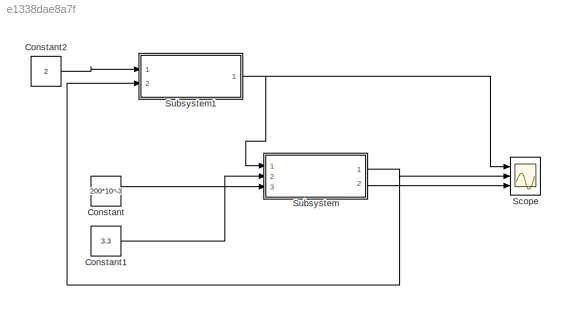
MODEL slx_e1338dae8a7f
KIND model
CONFIG AbsTol = auto
CONFIG FixedStep = auto
CONFIG MaxStep = auto
CONFIG MinStep = auto
CONFIG RelTol = 1e-3
CONFIG SampleTimeConstraint = Unconstrained
CONFIG Solver = ode15s
CONFIG SolverMode = SingleTasking
CONFIG SolverName = ode15s
CONFIG StartTime = 0.0
CONFIG StopTime = 0.01
BLOCK [Constant] Constant
  Value = 200*10^-3
BLOCK [Constant] Constant1
  Value = 3.3
BLOCK [Constant] Constant2
  Value = 2
BLOCK [Scope] Scope
  NumInputPorts = 3
  Ports = [3]
  ScopeSpecificationString = Simulink.scopes.TimeScopeBlockCfg('CurrentConfiguration', extmgr.ConfigurationSet(extmgr.Configuration('Core','General UI',true),extmgr.Configuration('Core','Source UI',true),extmgr.Configuration('Sources','WiredSimulink',true),extmgr.Configuration('Visuals','Time Domain',true,'SerializedDisplays',{struct('MinYLimReal','-0.05978','MaxYLimReal','4.71484','YLabelReal','','MinYLimMag','0.00000','MaxY...<+2740ch>
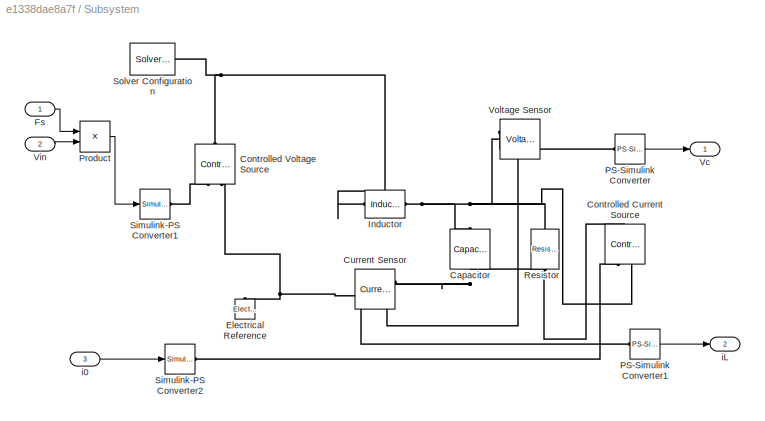
BLOCK [SubSystem] Subsystem
  Ports = [3, 2]
  RequestExecContextInheritance = off
  Variant = off
BLOCK [Reference] Subsystem/Capacitor  REF=fl_lib/Electrical/Electrical Elements/Capacitor
  Ports = [0, 0, 0, 0, 0, 1, 1]
  SourceBlock = fl_lib/Electrical/Electrical Elements/Capacitor
  SourceType = Capacitor
BLOCK [Reference] Subsystem/Controlled Current Source  REF=fl_lib/Electrical/Electrical Sources/Controlled Current
Source
  Ports = [0, 0, 0, 0, 0, 1, 2]
  SourceBlock = fl_lib/Electrical/Electrical Sources/Controlled Current\nSource
  SourceType = Controlled Current\nSource
BLOCK [Reference] Subsystem/Controlled Voltage Source  REF=fl_lib/Electrical/Electrical Sources/Controlled Voltage
Source
  Ports = [0, 0, 0, 0, 0, 1, 2]
  SourceBlock = fl_lib/Electrical/Electrical Sources/Controlled Voltage\nSource
  SourceType = Controlled Voltage\nSource
BLOCK [Reference] Subsystem/Current Sensor  REF=fl_lib/Electrical/Electrical Sensors/Current Sensor
  Ports = [0, 0, 0, 0, 0, 1, 2]
  SourceBlock = fl_lib/Electrical/Electrical Sensors/Current Sensor
  SourceType = Current Sensor
BLOCK [Reference] Subsystem/Electrical Reference  REF=fl_lib/Electrical/Electrical Elements/Electrical Reference
  Ports = [0, 0, 0, 0, 0, 1]
  SourceBlock = fl_lib/Electrical/Electrical Elements/Electrical Reference
  SourceType = Electrical Reference
BLOCK [Inport] Subsystem/Fs
  IconDisplay = Port number
BLOCK [Reference] Subsystem/Inductor  REF=fl_lib/Electrical/Electrical Elements/Inductor
  Ports = [0, 0, 0, 0, 0, 1, 1]
  SourceBlock = fl_lib/Electrical/Electrical Elements/Inductor
  SourceType = Inductor
BLOCK [Reference] Subsystem/PS-Simulink Converter  REF=nesl_utility/PS-Simulink
Converter
  Ports = [0, 1, 0, 0, 0, 1]
  SourceBlock = nesl_utility/PS-Simulink\nConverter
  SourceType = PS-Simulink\nConverter
BLOCK [Reference] Subsystem/PS-Simulink Converter1  REF=nesl_utility/PS-Simulink
Converter
  Ports = [0, 1, 0, 0, 0, 1]
  SourceBlock = nesl_utility/PS-Simulink\nConverter
  SourceType = PS-Simulink\nConverter
BLOCK [Product] Subsystem/Product
  InputSameDT = off
  OutDataTypeStr = Inherit: Inherit via internal rule
  Ports = [2, 1]
  RndMeth = Floor
  SaturateOnIntegerOverflow = off
BLOCK [Reference] Subsystem/Resistor  REF=fl_lib/Electrical/Electrical Elements/Resistor
  Ports = [0, 0, 0, 0, 0, 1, 1]
  SourceBlock = fl_lib/Electrical/Electrical Elements/Resistor
  SourceType = Resistor
BLOCK [Reference] Subsystem/Simulink-PS Converter1  REF=nesl_utility/Simulink-PS
Converter
  Ports = [1, 0, 0, 0, 0, 0, 1]
  SourceBlock = nesl_utility/Simulink-PS\nConverter
  SourceType = Simulink-PS\nConverter
BLOCK [Reference] Subsystem/Simulink-PS Converter2  REF=nesl_utility/Simulink-PS
Converter
  Ports = [1, 0, 0, 0, 0, 0, 1]
  SourceBlock = nesl_utility/Simulink-PS\nConverter
  SourceType = Simulink-PS\nConverter
BLOCK [Reference] Subsystem/Solver Configuration  REF=nesl_utility/Solver
Configuration
  Ports = [0, 0, 0, 0, 0, 0, 1]
  SourceBlock = nesl_utility/Solver\nConfiguration
  SourceType = Solver\nConfiguration
BLOCK [Outport] Subsystem/Vc
  IconDisplay = Port number
BLOCK [Inport] Subsystem/Vin
  IconDisplay = Port number
  Port = 2
BLOCK [Reference] Subsystem/Voltage Sensor  REF=fl_lib/Electrical/Electrical Sensors/Voltage Sensor
  Ports = [0, 0, 0, 0, 0, 1, 2]
  SourceBlock = fl_lib/Electrical/Electrical Sensors/Voltage Sensor
  SourceType = Voltage Sensor
BLOCK [Inport] Subsystem/i0
  IconDisplay = Port number
  Port = 3
BLOCK [Outport] Subsystem/iL
  IconDisplay = Port number
  Port = 2
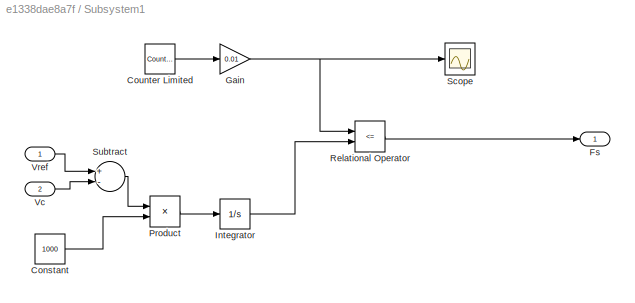
BLOCK [SubSystem] Subsystem1
  Ports = [2, 1]
  RequestExecContextInheritance = off
  Variant = off
BLOCK [Constant] Subsystem1/Constant
  Value = 1000
BLOCK [Reference] Subsystem1/Counter Limited  REF=simulink/Sources/Counter
Limited
  Ports = [0, 1]
  SourceBlock = simulink/Sources/Counter\nLimited
  SourceType = Counter Limited
BLOCK [Outport] Subsystem1/Fs
  IconDisplay = Port number
BLOCK [Gain] Subsystem1/Gain
  Gain = 0.01
  OutDataTypeStr = Inherit: Inherit via internal rule
  ParamDataTypeStr = Inherit: Inherit via internal rule
  SaturateOnIntegerOverflow = off
BLOCK [Integrator] Subsystem1/Integrator
  Ports = [1, 1]
BLOCK [Product] Subsystem1/Product
  InputSameDT = off
  OutDataTypeStr = Inherit: Inherit via internal rule
  Ports = [2, 1]
  RndMeth = Floor
  SaturateOnIntegerOverflow = off
BLOCK [RelationalOperator] Subsystem1/Relational Operator
  InputSameDT = off
  Operator = <=
  OutDataTypeStr = boolean
  Ports = [2, 1]
BLOCK [Scope] Subsystem1/Scope
  NumInputPorts = 1
  Ports = [1]
  ScopeSpecificationString = Simulink.scopes.TimeScopeBlockCfg('CurrentConfiguration', extmgr.ConfigurationSet(extmgr.Configuration('Core','General UI',true),extmgr.Configuration('Core','Source UI',true),extmgr.Configuration('Sources','WiredSimulink',true,'DataLoggingVariableName','ScopeData2'),extmgr.Configuration('Visuals','Time Domain',true,'SerializedDisplays',{struct('MinYLimReal','-0.125','MaxYLimReal','1.125','YLabelRe...<+2843ch>
BLOCK [Sum] Subsystem1/Subtract
  InputSameDT = off
  Inputs = +-
  OutDataTypeStr = Inherit: Inherit via internal rule
  Ports = [2, 1]
  SaturateOnIntegerOverflow = off
BLOCK [Inport] Subsystem1/Vc
  IconDisplay = Port number
  Port = 2
BLOCK [Inport] Subsystem1/Vref
  IconDisplay = Port number
LINE Constant1:1 -> Subsystem:2
LINE Constant2:1 -> Subsystem1:1
LINE Constant:1 -> Subsystem:3
LINE Subsystem/Fs:1 -> Subsystem/Product:1
LINE Subsystem/PS-Simulink Converter1:1 -> Subsystem/iL:1
LINE Subsystem/PS-Simulink Converter:1 -> Subsystem/Vc:1
LINE Subsystem/Product:1 -> Subsystem/Simulink-PS Converter1:1
LINE Subsystem/Vin:1 -> Subsystem/Product:2
LINE Subsystem/i0:1 -> Subsystem/Simulink-PS Converter2:1
LINE Subsystem1/Constant:1 -> Subsystem1/Product:2
LINE Subsystem1/Counter Limited:1 -> Subsystem1/Gain:1
NET Subsystem1/Gain:1 -> Subsystem1/Relational Operator:1, Subsystem1/Scope:1
LINE Subsystem1/Integrator:1 -> Subsystem1/Relational Operator:2
LINE Subsystem1/Product:1 -> Subsystem1/Integrator:1
LINE Subsystem1/Relational Operator:1 -> Subsystem1/Fs:1
LINE Subsystem1/Subtract:1 -> Subsystem1/Product:1
LINE Subsystem1/Vc:1 -> Subsystem1/Subtract:2
LINE Subsystem1/Vref:1 -> Subsystem1/Subtract:1
NET Subsystem1:1 -> Scope:1, Subsystem:1
NET Subsystem:1 -> Scope:2, Subsystem1:2
LINE Subsystem:2 -> Scope:3
PNET net1: Subsystem/Capacitor:LConn1 -- Subsystem/Controlled Current Source:RConn2 -- Subsystem/Inductor:RConn1 -- Subsystem/Resistor:LConn1 -- Subsystem/Voltage Sensor:LConn1
PNET net2: Subsystem/Capacitor:RConn1 -- Subsystem/Controlled Current Source:LConn1 -- Subsystem/Current Sensor:LConn1 -- Subsystem/Resistor:RConn1 -- Subsystem/Voltage Sensor:RConn2
PLINE Subsystem/Controlled Current Source:RConn1 -- Subsystem/Simulink-PS Converter2:RConn1
PNET net3: Subsystem/Controlled Voltage Source:LConn1 -- Subsystem/Inductor:LConn1 -- Subsystem/Solver Configuration:RConn1
PLINE Subsystem/Controlled Voltage Source:RConn1 -- Subsystem/Simulink-PS Converter1:RConn1
PNET net4: Subsystem/Controlled Voltage Source:RConn2 -- Subsystem/Current Sensor:RConn2 -- Subsystem/Electrical Reference:LConn1
PLINE Subsystem/Current Sensor:RConn1 -- Subsystem/PS-Simulink Converter1:LConn1
PLINE Subsystem/PS-Simulink Converter:LConn1 -- Subsystem/Voltage Sensor:RConn1
note: NET lines group one-source signal fan-out (src -> all destinations, sorted); 1:1 wires keep LINE; PNET lines group multi-terminal physical nets as a canonical sorted terminal list (undirected conserving connections); 2-terminal nets keep the pairwise PLINE form
